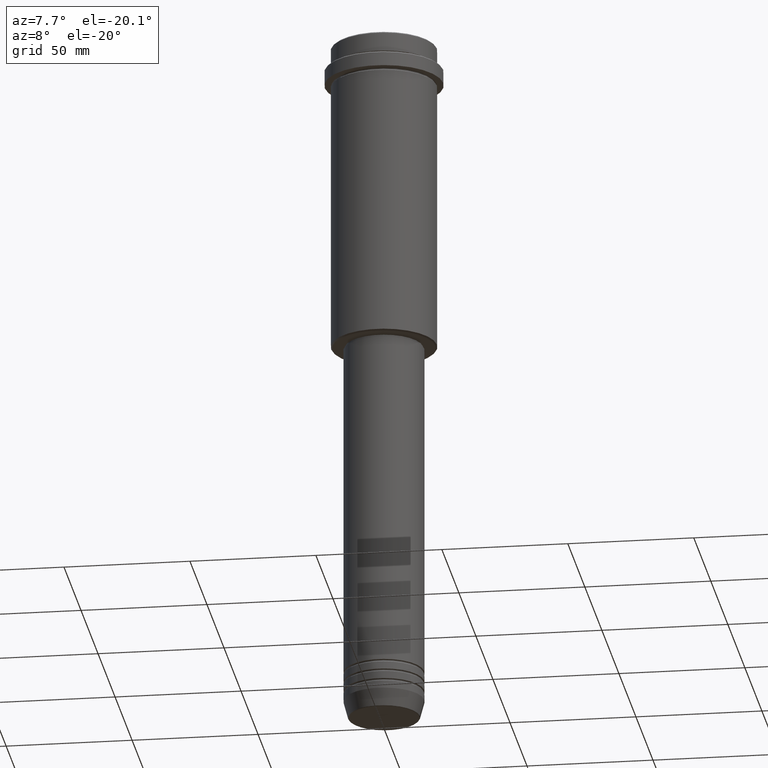
[diagram: clean part render]
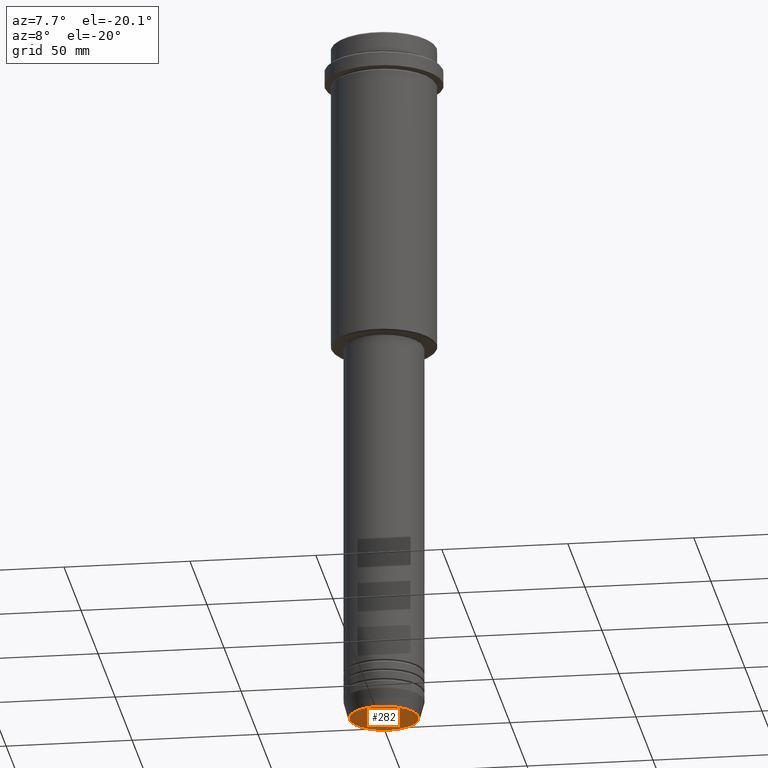
[diagram: same view with one face highlighted and labeled with its STEP entity id]
A machine part, auxiliary view. The second image highlights one B-rep face of the part: STEP entity #282.
In plain terms, the highlighted planar face has unit normal (0, -0, 1).
Its self-contained STEP definition (entity closure, byte-faithful):
#46 = CIRCLE ( 'NONE', #1200, 13.74069215899265828 ) ;
#152 = CARTESIAN_POINT ( 'NONE',  ( 0.000000000000000000, 0.000000000000000000, -280.0000000000000000 ) ) ;
#165 = DIRECTION ( 'NONE',  ( 1.000000000000000000, 0.000000000000000000, 0.000000000000000000 ) ) ;
#199 = CARTESIAN_POINT ( 'NONE',  ( 13.74069215899265828, 0.000000000000000000, -280.0000000000000000 ) ) ;
#278 = CIRCLE ( 'NONE', #538, 13.74069215899265828 ) ;
#282 = ADVANCED_FACE ( 'NONE', ( #1129 ), #588, .F. ) ;
#304 = DIRECTION ( 'NONE',  ( 0.000000000000000000, 0.000000000000000000, -1.000000000000000000 ) ) ;
#435 = ORIENTED_EDGE ( 'NONE', *, *, #1199, .T. ) ;
#538 = AXIS2_PLACEMENT_3D ( 'NONE', #961, #304, #165 ) ;
#571 = ORIENTED_EDGE ( 'NONE', *, *, #1096, .T. ) ;
#576 = DIRECTION ( 'NONE',  ( 0.000000000000000000, 0.000000000000000000, -1.000000000000000000 ) ) ;
#588 = PLANE ( 'NONE',  #1061 ) ;
#718 = DIRECTION ( 'NONE',  ( 1.000000000000000000, 0.000000000000000000, 0.000000000000000000 ) ) ;
#786 = VERTEX_POINT ( 'NONE', #867 ) ;
#867 = CARTESIAN_POINT ( 'NONE',  ( -13.74069215899265828, 1.712322416342415986E-15, -280.0000000000000000 ) ) ;
#906 = CARTESIAN_POINT ( 'NONE',  ( 0.000000000000000000, 0.000000000000000000, -280.0000000000000000 ) ) ;
#961 = CARTESIAN_POINT ( 'NONE',  ( 0.000000000000000000, 0.000000000000000000, -280.0000000000000000 ) ) ;
#983 = VERTEX_POINT ( 'NONE', #199 ) ;
#1061 = AXIS2_PLACEMENT_3D ( 'NONE', #152, #1142, #718 ) ;
#1096 = EDGE_CURVE ( 'NONE', #786, #983, #46, .T. ) ;
#1129 = FACE_OUTER_BOUND ( 'NONE', #1272, .T. ) ;
#1142 = DIRECTION ( 'NONE',  ( 0.000000000000000000, -0.000000000000000000, 1.000000000000000000 ) ) ;
#1199 = EDGE_CURVE ( 'NONE', #983, #786, #278, .T. ) ;
#1200 = AXIS2_PLACEMENT_3D ( 'NONE', #906, #576, #1335 ) ;
#1272 = EDGE_LOOP ( 'NONE', ( #435, #571 ) ) ;
#1335 = DIRECTION ( 'NONE',  ( 1.000000000000000000, 0.000000000000000000, 0.000000000000000000 ) ) ;